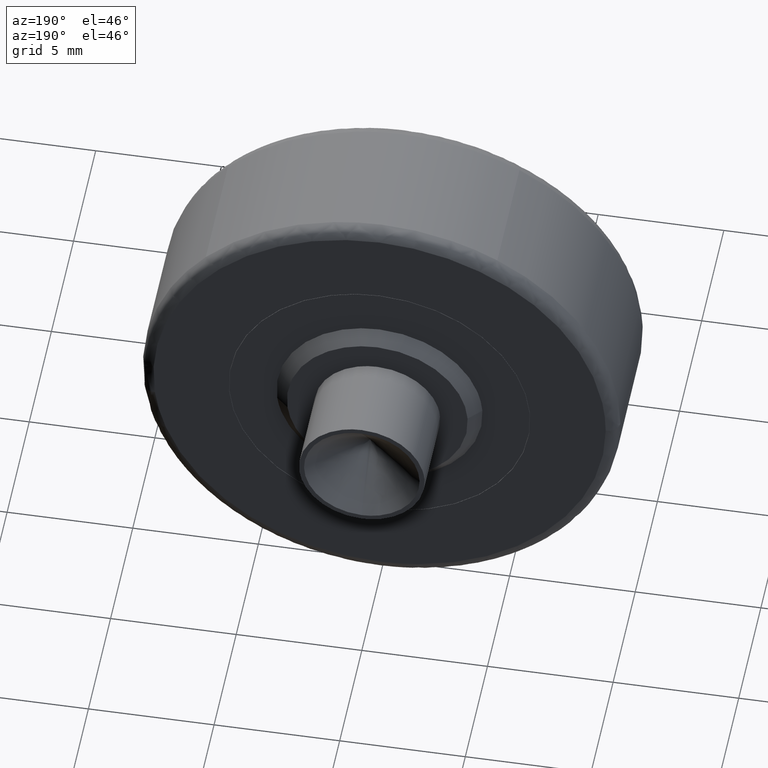
[diagram: clean part render]
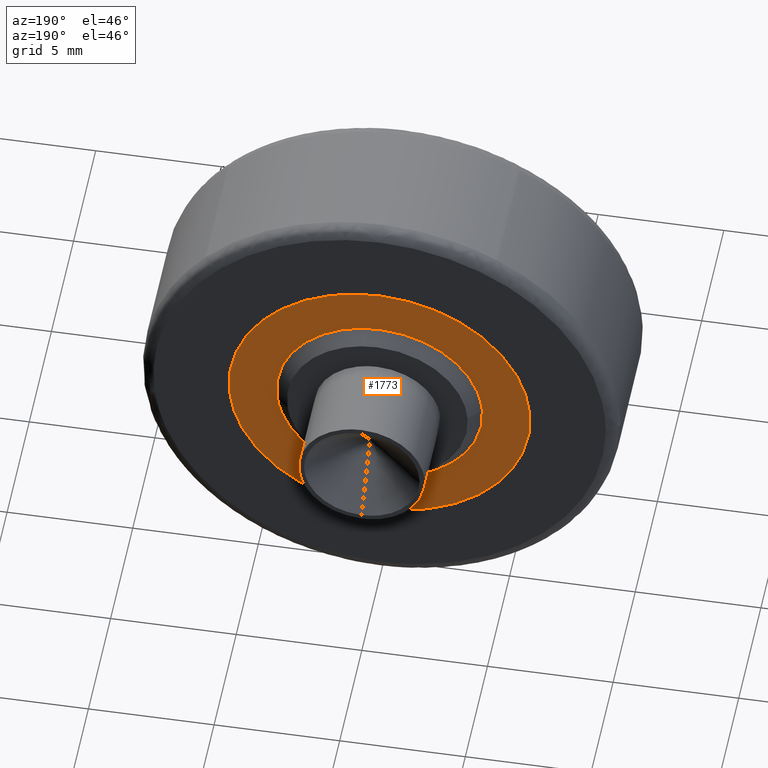
[diagram: same view with one face highlighted and labeled with its STEP entity id]
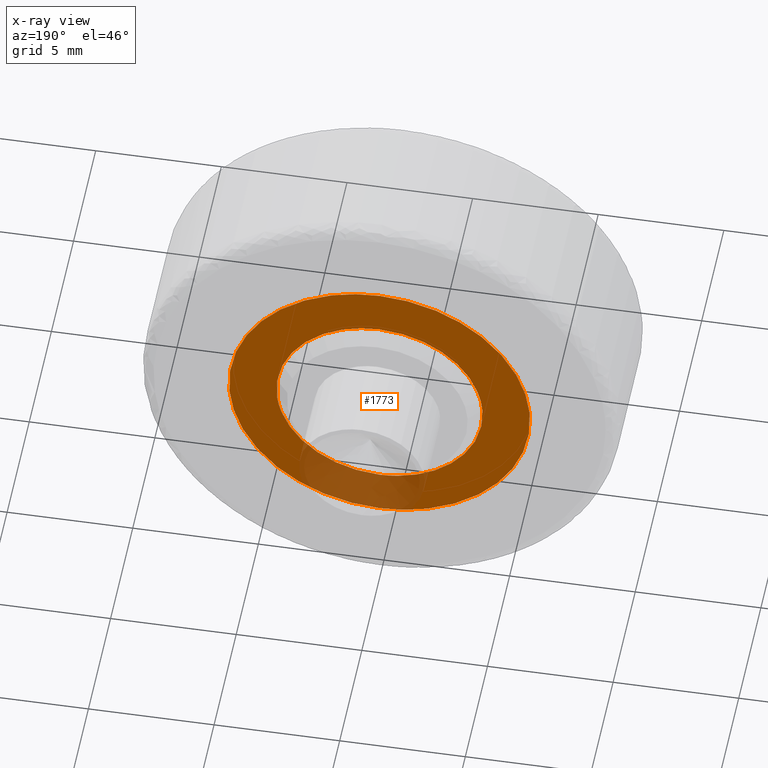
[diagram: x-ray of the same camera — body ghosted, the highlighted face saturated]
A machine part, auxiliary view. The second image highlights one B-rep face of the part: STEP entity #1773.
The next image is the same camera in x-ray: the body ghosted, the highlighted face saturated — about 16% of this face is hidden behind the body in this view.
In plain terms, the highlighted face is a freeform B-spline surface patch.
Its self-contained STEP definition (entity closure, byte-faithful):
#66=CARTESIAN_POINT('',(4.071339058091091,5.999999999999179,-0.483940362099173));
#67=VERTEX_POINT('',#66);
#68=CARTESIAN_POINT('',(0.0,6.0,4.100000000000001));
#69=VERTEX_POINT('',#68);
#70=CARTESIAN_POINT('',(4.071339058091092,5.999999999999179,-0.483940362099172));
#71=CARTESIAN_POINT('',(4.100000000000001,6.000000000000001,-0.242818890579264));
#72=CARTESIAN_POINT('',(4.100000000000001,6.0,-1.773316E-016));
#73=CARTESIAN_POINT('',(4.100000000000001,6.0,4.100000000000001));
#74=CARTESIAN_POINT('',(0.0,6.0,4.100000000000001));
#82=(BOUNDED_CURVE()B_SPLINE_CURVE(2,(#70,#71,#72,#73,#74),.UNSPECIFIED.,.F.,.U.)B_SPLINE_CURVE_WITH_KNOTS((3,2,3),(0.229562473515116,0.250000000000000,0.500000000000000),.UNSPECIFIED.)CURVE()GEOMETRIC_REPRESENTATION_ITEM()RATIONAL_B_SPLINE_CURVE((0.956026754186850,0.976055948333028,1.0,0.707106781186547,1.0))REPRESENTATION_ITEM(''));
#83=EDGE_CURVE('',#67,#69,#82,.T.);
#124=CARTESIAN_POINT('',(-4.092352673532298,5.999999999995088,0.250299012130137));
#125=VERTEX_POINT('',#124);
#131=CARTESIAN_POINT('',(0.0,6.0,4.100000000000001));
#132=CARTESIAN_POINT('',(-3.856894874243607,6.0,4.100000000000001));
#133=CARTESIAN_POINT('',(-4.092352673532298,5.999999999995088,0.250299012130137));
#141=(BOUNDED_CURVE()B_SPLINE_CURVE(2,(#131,#132,#133),.UNSPECIFIED.,.F.,.U.)B_SPLINE_CURVE_WITH_KNOTS((3,3),(0.500000000000000,0.739332962238854),.UNSPECIFIED.)CURVE()GEOMETRIC_REPRESENTATION_ITEM()RATIONAL_B_SPLINE_CURVE((1.0,0.719603993286814,0.976072041666527))REPRESENTATION_ITEM(''));
#142=EDGE_CURVE('',#69,#125,#141,.T.);
#165=CARTESIAN_POINT('',(0.0,6.0,-4.100000000000001));
#166=VERTEX_POINT('',#165);
#167=CARTESIAN_POINT('',(0.0,6.0,-4.100000000000001));
#168=CARTESIAN_POINT('',(3.641515556389142,6.000000000000001,-4.100000000000001));
#169=CARTESIAN_POINT('',(4.071339058091091,5.999999999999179,-0.483940362099173));
#177=(BOUNDED_CURVE()B_SPLINE_CURVE(2,(#167,#168,#169),.UNSPECIFIED.,.F.,.U.)B_SPLINE_CURVE_WITH_KNOTS((3,3),(0.0,0.229562473515116),.UNSPECIFIED.)CURVE()GEOMETRIC_REPRESENTATION_ITEM()RATIONAL_B_SPLINE_CURVE((1.0,0.731050832853519,0.956026754186850))REPRESENTATION_ITEM(''));
#178=EDGE_CURVE('',#166,#67,#177,.T.);
#180=CARTESIAN_POINT('',(-4.092352673532298,5.999999999995088,0.250299012130137));
#181=CARTESIAN_POINT('',(-4.100000000000001,6.0,0.125266329561241));
#182=CARTESIAN_POINT('',(-4.100000000000001,6.0,-1.773316E-016));
#183=CARTESIAN_POINT('',(-4.100000000000001,6.0,-4.100000000000001));
#184=CARTESIAN_POINT('',(0.0,6.0,-4.100000000000001));
#192=(BOUNDED_CURVE()B_SPLINE_CURVE(2,(#180,#181,#182,#183,#184),.UNSPECIFIED.,.F.,.U.)B_SPLINE_CURVE_WITH_KNOTS((3,2,3),(0.739332962238855,0.750000000000000,1.0),.UNSPECIFIED.)CURVE()GEOMETRIC_REPRESENTATION_ITEM()RATIONAL_B_SPLINE_CURVE((0.976072041666529,0.987502787899734,1.0,0.707106781186547,1.0))REPRESENTATION_ITEM(''));
#193=EDGE_CURVE('',#125,#166,#192,.T.);
#616=CARTESIAN_POINT('',(0.0,6.0,5.989999999999999));
#617=VERTEX_POINT('',#616);
#618=CARTESIAN_POINT('',(-5.971535460733544,6.000000000000009,0.469961957116721));
#619=VERTEX_POINT('',#618);
#620=CARTESIAN_POINT('',(0.0,6.0,5.989999999999999));
#621=CARTESIAN_POINT('',(-5.537106510421141,5.999999999999998,5.989999999999998));
#622=CARTESIAN_POINT('',(-5.971535460733544,6.000000000000009,0.469961957116721));
#630=(BOUNDED_CURVE()B_SPLINE_CURVE(2,(#620,#621,#622),.UNSPECIFIED.,.F.,.U.)B_SPLINE_CURVE_WITH_KNOTS((3,3),(0.0,0.236331531043111),.UNSPECIFIED.)CURVE()GEOMETRIC_REPRESENTATION_ITEM()RATIONAL_B_SPLINE_CURVE((1.0,0.723120388662688,0.969723837021123))REPRESENTATION_ITEM(''));
#631=EDGE_CURVE('',#617,#619,#630,.T.);
#672=CARTESIAN_POINT('',(5.971535460733543,6.000000000000009,-0.469961957116722));
#673=VERTEX_POINT('',#672);
#679=CARTESIAN_POINT('',(5.971535460733543,6.000000000000009,-0.469961957116722));
#680=CARTESIAN_POINT('',(5.989999999999999,6.0,-0.235343709206193));
#681=CARTESIAN_POINT('',(5.989999999999999,6.0,0.0));
#682=CARTESIAN_POINT('',(5.989999999999998,6.0,5.989999999999998));
#683=CARTESIAN_POINT('',(0.0,6.0,5.989999999999999));
#691=(BOUNDED_CURVE()B_SPLINE_CURVE(2,(#679,#680,#681,#682,#683),.UNSPECIFIED.,.F.,.U.)B_SPLINE_CURVE_WITH_KNOTS((3,2,3),(0.736331531043111,0.750000000000000,1.0),.UNSPECIFIED.)CURVE()GEOMETRIC_REPRESENTATION_ITEM()RATIONAL_B_SPLINE_CURVE((0.969723837021123,0.983986392523860,1.0,0.707106781186548,1.0))REPRESENTATION_ITEM(''));
#692=EDGE_CURVE('',#673,#617,#691,.T.);
#715=CARTESIAN_POINT('',(0.0,6.0,-5.989999999999999));
#716=VERTEX_POINT('',#715);
#717=CARTESIAN_POINT('',(-5.971535460733544,6.000000000000009,0.469961957116721));
#718=CARTESIAN_POINT('',(-5.989999999999999,6.0,0.235343709206192));
#719=CARTESIAN_POINT('',(-5.989999999999999,6.0,0.0));
#720=CARTESIAN_POINT('',(-5.989999999999998,6.0,-5.989999999999998));
#721=CARTESIAN_POINT('',(0.0,6.0,-5.989999999999999));
#729=(BOUNDED_CURVE()B_SPLINE_CURVE(2,(#717,#718,#719,#720,#721),.UNSPECIFIED.,.F.,.U.)B_SPLINE_CURVE_WITH_KNOTS((3,2,3),(0.236331531043111,0.250000000000000,0.500000000000000),.UNSPECIFIED.)CURVE()GEOMETRIC_REPRESENTATION_ITEM()RATIONAL_B_SPLINE_CURVE((0.969723837021123,0.983986392523860,1.0,0.707106781186548,1.0))REPRESENTATION_ITEM(''));
#730=EDGE_CURVE('',#619,#716,#729,.T.);
#732=CARTESIAN_POINT('',(0.0,6.0,-5.989999999999999));
#733=CARTESIAN_POINT('',(5.537106510421139,6.0,-5.989999999999998));
#734=CARTESIAN_POINT('',(5.971535460733543,6.000000000000009,-0.469961957116722));
#742=(BOUNDED_CURVE()B_SPLINE_CURVE(2,(#732,#733,#734),.UNSPECIFIED.,.F.,.U.)B_SPLINE_CURVE_WITH_KNOTS((3,3),(0.500000000000000,0.736331531043111),.UNSPECIFIED.)CURVE()GEOMETRIC_REPRESENTATION_ITEM()RATIONAL_B_SPLINE_CURVE((1.0,0.723120388662688,0.969723837021123))REPRESENTATION_ITEM(''));
#743=EDGE_CURVE('',#716,#673,#742,.T.);
#1756=CARTESIAN_POINT('',(-6.586572413573198,6.0,-6.588400709060123));
#1757=CARTESIAN_POINT('',(-6.586572413573198,6.0,6.588400387731483));
#1758=CARTESIAN_POINT('',(6.586571985135013,6.0,-6.588400709060123));
#1759=CARTESIAN_POINT('',(6.586571985135013,6.0,6.588400387731483));
#1760=B_SPLINE_SURFACE_WITH_KNOTS('',1,1,((#1756,#1758),(#1757,#1759)),.UNSPECIFIED.,.F.,.F.,.U.,(2,2),(2,2),(0.0,13.176801096791610),(0.0,13.173144398708210),.UNSPECIFIED.);
#1761=ORIENTED_EDGE('',*,*,#692,.F.);
#1762=ORIENTED_EDGE('',*,*,#743,.F.);
#1763=ORIENTED_EDGE('',*,*,#730,.F.);
#1764=ORIENTED_EDGE('',*,*,#631,.F.);
#1765=EDGE_LOOP('',(#1761,#1762,#1763,#1764));
#1766=FACE_OUTER_BOUND('',#1765,.T.);
#1767=ORIENTED_EDGE('',*,*,#142,.T.);
#1768=ORIENTED_EDGE('',*,*,#193,.T.);
#1769=ORIENTED_EDGE('',*,*,#178,.T.);
#1770=ORIENTED_EDGE('',*,*,#83,.T.);
#1771=EDGE_LOOP('',(#1767,#1768,#1769,#1770));
#1772=FACE_BOUND('',#1771,.T.);
#1773=ADVANCED_FACE('',(#1766,#1772),#1760,.T.);